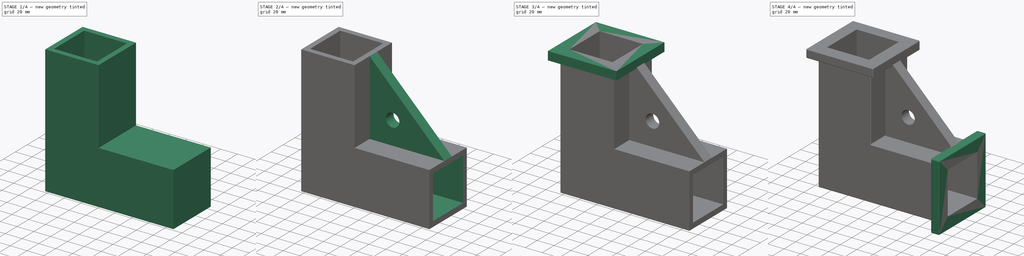
[diagram: build sequence overview — one tinted view per stage of 4, left to right]
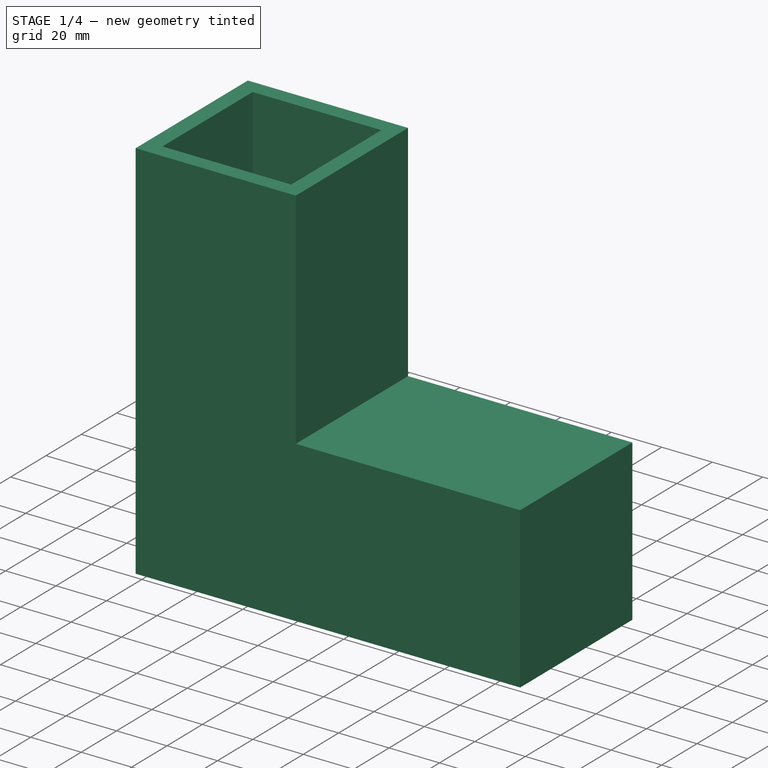
[diagram: stage 1 of 4 — iso view after this stage's code; geometry added in this stage tinted green]
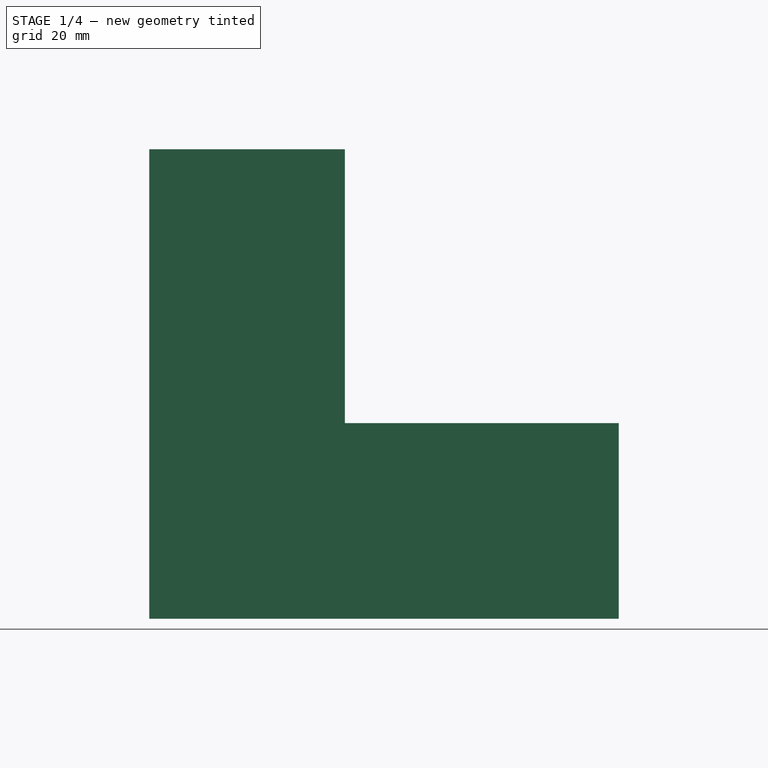
[diagram: stage 1 of 4 — front view after this stage's code; geometry added in this stage tinted green]
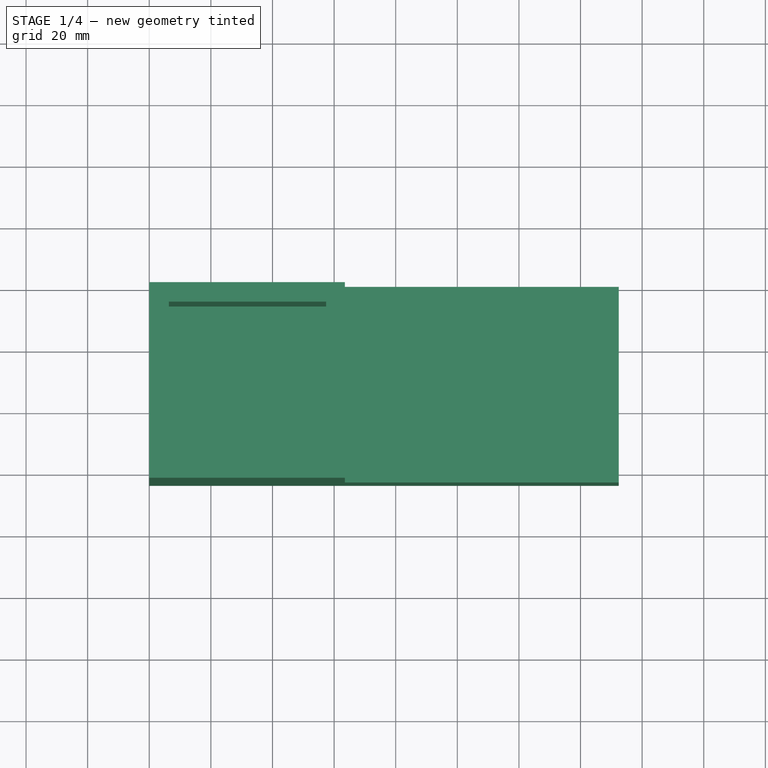
[diagram: stage 1 of 4 — top view after this stage's code; geometry added in this stage tinted green]
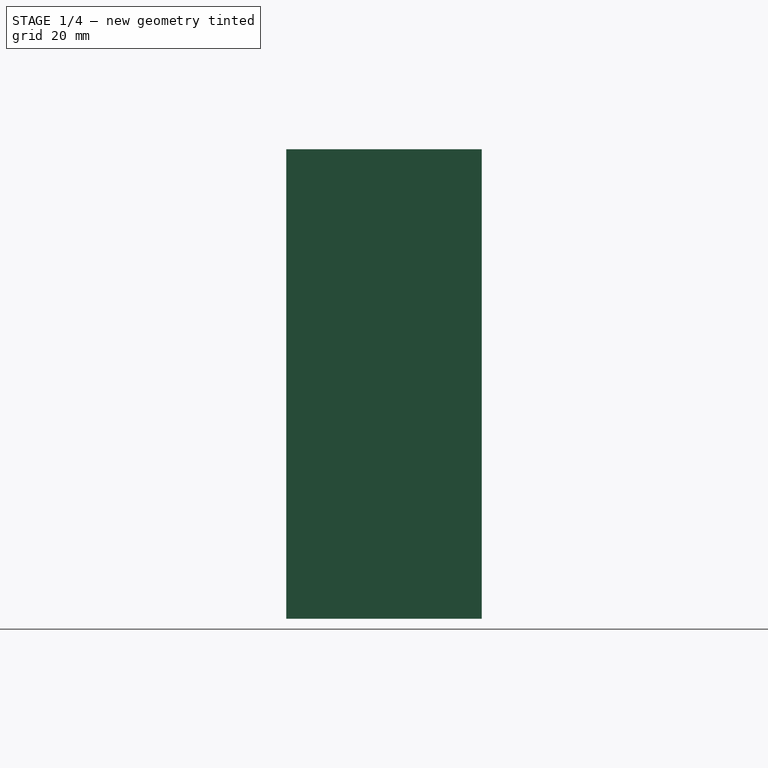
[diagram: stage 1 of 4 — right view after this stage's code; geometry added in this stage tinted green]
FCSTD DOCUMENT  (FreeCAD 1.0R39319 (Git))
Label: 2x2 corner
License: All rights reserved
LicenseURL: https://en.wikipedia.org/wiki/All_rights_reserved
objects: Sketcher::SketchObject×8, PartDesign::Pad×4, PartDesign::Pocket×4, PartDesign::Fillet×1, PartDesign::Body×1, App::Part×1
note: 44 computed .brp shape members not serialized (recipe doc carries the construction recipe); baked Part::Feature solids carry a one-line shape summary decoded from their .brp

FEATURE [Sketcher::SketchObject] Sketch
  ArcFitTolerance = 1e-06
  AttachmentSupport = -> [XZ_Plane001]
  FullyConstrained = true
  MakeInternals = false
  MapMode = 5
  Placement = pos=(0,0,0) rot=(1,0,0;1.5708rad)
  sketch-geometry (6):
    g0: LineSegment StartX=0 StartY=152.4 StartZ=0 EndX=0 EndY=0 EndZ=0
    g1: LineSegment StartX=0 StartY=0 StartZ=0 EndX=152.4 EndY=0 EndZ=0
    g2: LineSegment StartX=152.4 StartY=0 StartZ=0 EndX=152.4 EndY=63.5 EndZ=0
    g3: LineSegment StartX=152.4 StartY=63.5 StartZ=0 EndX=63.5 EndY=63.5 EndZ=0
    g4: LineSegment StartX=63.5 StartY=63.5 StartZ=0 EndX=63.5 EndY=152.4 EndZ=0
    g5: LineSegment StartX=63.5 StartY=152.4 StartZ=0 EndX=0 EndY=152.4 EndZ=0
  constraints (17):
    c: PointOnObject(g0,g-2)
    c: Coincident(g0,g-1)
    c: Coincident(g0,g1)
    c: PointOnObject(g1,g-1)
    c: Coincident(g1,g2)
    c: Vertical(g2)
    c: Coincident(g2,g3)
    c: Horizontal(g3)
    c: Coincident(g3,g4)
    c: Vertical(g4)
    c: Coincident(g4,g5)
    c: Coincident(g5,g0)
    c: Horizontal(g5)
    c: DistanceY(g-1,g0) = 152.4
    c: Distance(g1,g-1) = 152.4
    c: DistanceX(g-1,g4) = 63.5
    c: DistanceY(g-1,g2) = 63.5
FEATURE [PartDesign::Pad] Pad
  Direction = (0,-1,2e-16)
  Length = 63.5
  Length2 = 10
  Placement = pos=(0,0,0) rot=(1,0,0;1.5708rad)
  Profile = -> Sketch
  ReferenceAxis = -> Sketch [N_Axis]
  Refine = true
  Suppressed = false
  Type = 0
FEATURE [Sketcher::SketchObject] Sketch001
  ArcFitTolerance = 1e-06
  AttachmentSupport = -> [Pad]
  FullyConstrained = true
  MakeInternals = false
  MapMode = 5
  Placement = pos=(0,3.38e-14,152.4) rot=(0,0,1;3.14159rad)
  sketch-geometry (4):
    g0: LineSegment StartX=-57.4 StartY=57.4 StartZ=0 EndX=-57.4 EndY=6.35 EndZ=0
    g1: LineSegment StartX=-57.4 StartY=6.35 StartZ=0 EndX=-6.35 EndY=6.35 EndZ=0
    g2: LineSegment StartX=-6.35 StartY=6.35 StartZ=0 EndX=-6.35 EndY=57.4 EndZ=0
    g3: LineSegment StartX=-6.35 StartY=57.4 StartZ=0 EndX=-57.4 EndY=57.4 EndZ=0
  constraints (12):
    c: Coincident(g0,g1)
    c: Coincident(g1,g2)
    c: Coincident(g2,g3)
    c: Coincident(g3,g0)
    c: Vertical(g0)
    c: Vertical(g2)
    c: Horizontal(g1)
    c: Horizontal(g3)
    c: DistanceX(g1,g1) = 51.05
    c: DistanceY(g2,g2) = 51.05
    c: Distance(g1,g-2) = 6.35
    c: DistanceY(g-1,g1) = 6.35
FEATURE [PartDesign::Pocket] Pocket
  BaseFeature = -> Pad
  Direction = (0,0,-1)
  Length = 88.9
  Length2 = 5
  Placement = pos=(0,0,0) rot=(1,0,0;1.5708rad)
  Profile = -> Sketch001
  ReferenceAxis = -> Sketch001 [N_Axis]
  Refine = true
  Suppressed = false
  Type = 0
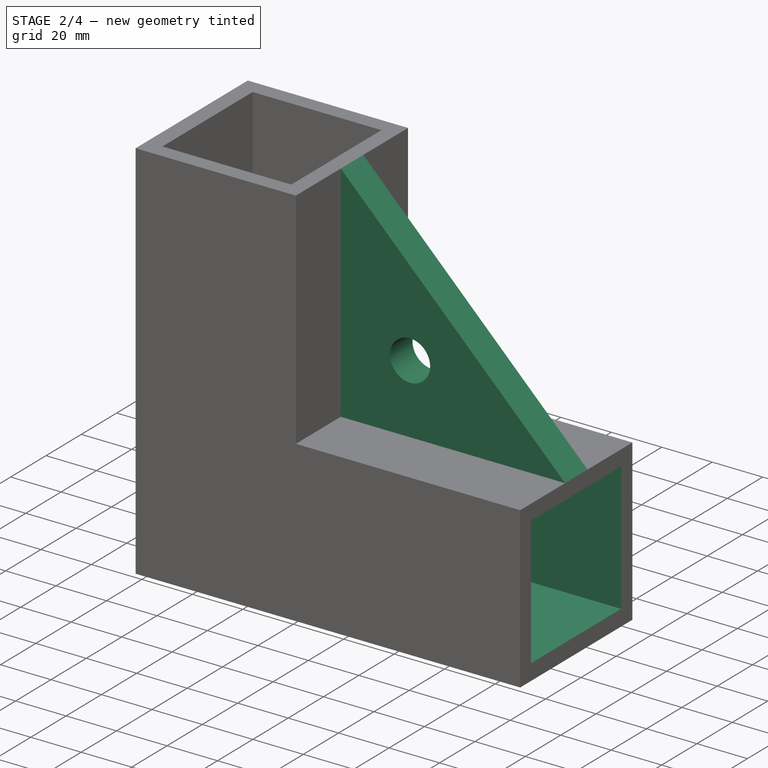
[diagram: stage 2 of 4 — iso view after this stage's code; geometry added in this stage tinted green]
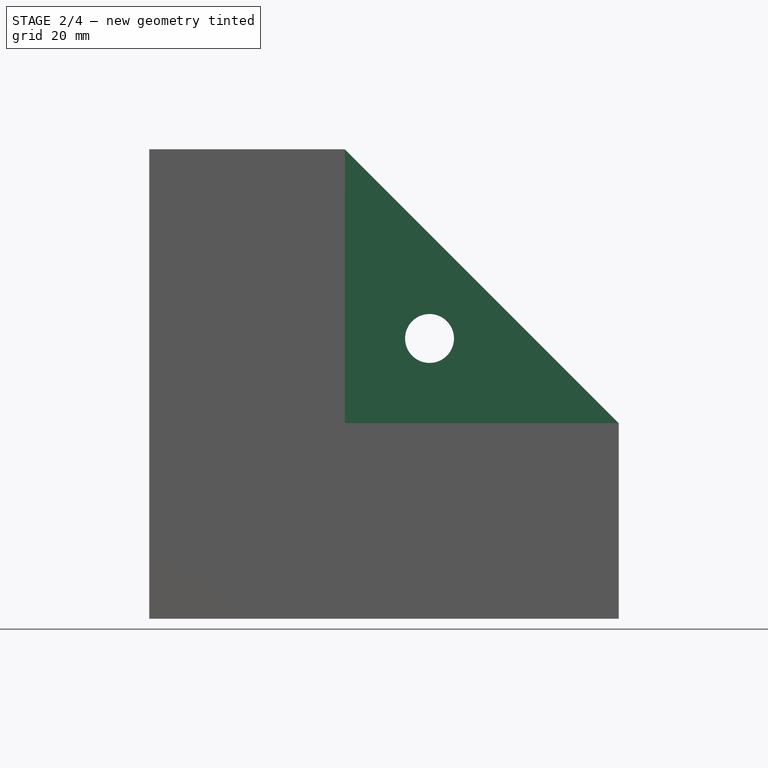
[diagram: stage 2 of 4 — front view after this stage's code; geometry added in this stage tinted green]
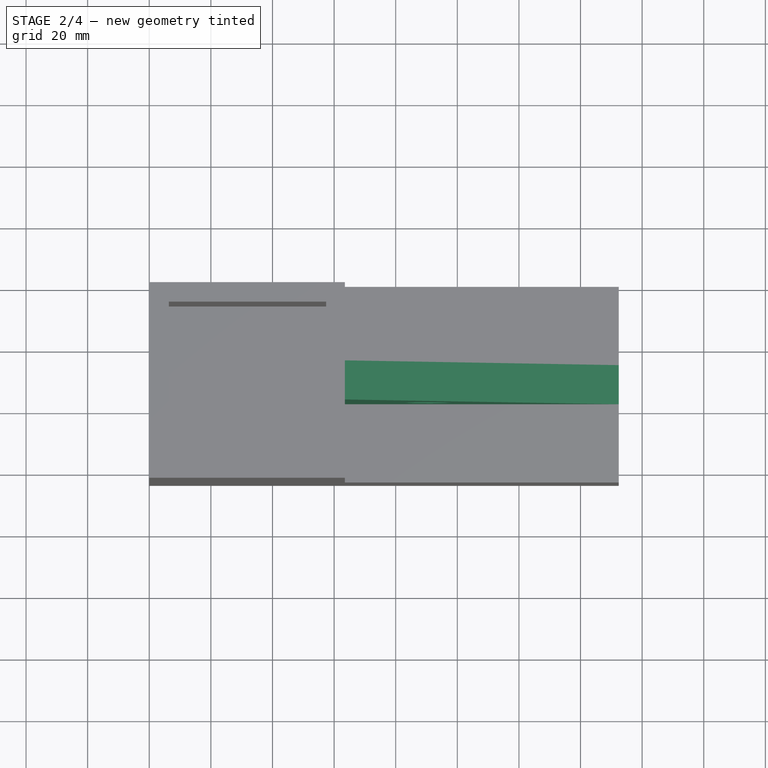
[diagram: stage 2 of 4 — top view after this stage's code; geometry added in this stage tinted green]
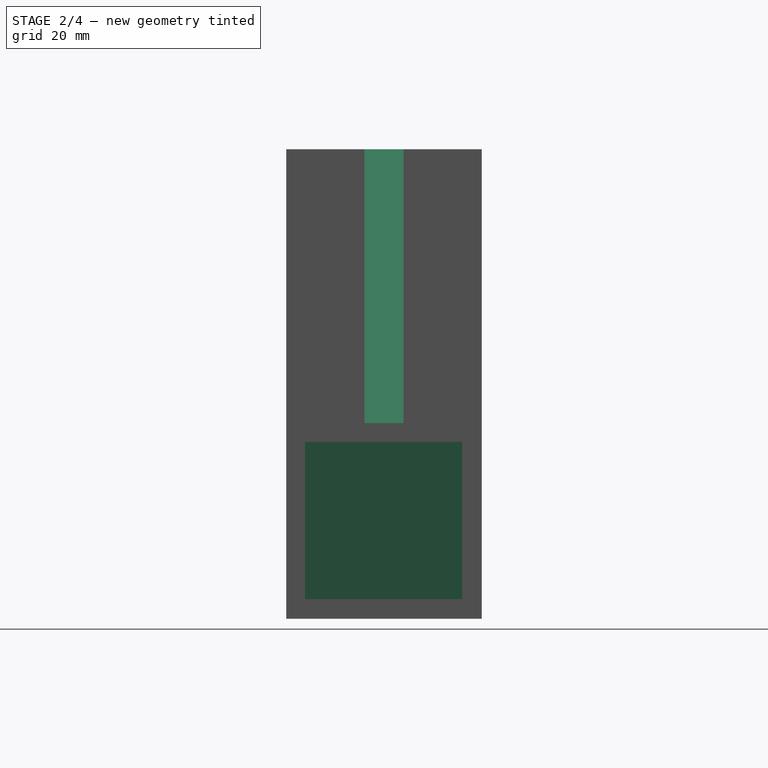
[diagram: stage 2 of 4 — right view after this stage's code; geometry added in this stage tinted green]
FEATURE [Sketcher::SketchObject] Sketch002
  ArcFitTolerance = 1e-06
  AttachmentSupport = -> [Pocket]
  FullyConstrained = true
  MakeInternals = false
  MapMode = 5
  Placement = pos=(152.4,0,0) rot=(0.707107,0,0.707107;3.14159rad)
  sketch-geometry (4):
    g0: LineSegment StartX=6.35 StartY=57.4 StartZ=0 EndX=6.35 EndY=6.35 EndZ=0
    g1: LineSegment StartX=6.35 StartY=6.35 StartZ=0 EndX=57.4 EndY=6.35 EndZ=0
    g2: LineSegment StartX=57.4 StartY=6.35 StartZ=0 EndX=57.4 EndY=57.4 EndZ=0
    g3: LineSegment StartX=57.4 StartY=57.4 StartZ=0 EndX=6.35 EndY=57.4 EndZ=0
  constraints (12):
    c: Coincident(g0,g1)
    c: Coincident(g1,g2)
    c: Coincident(g2,g3)
    c: Coincident(g3,g0)
    c: Vertical(g0)
    c: Vertical(g2)
    c: Horizontal(g1)
    c: Horizontal(g3)
    c: DistanceX(g1,g1) = 51.05
    c: DistanceY(g0,g0) = 51.05
    c: DistanceX(g-1,g0) = 6.35
    c: DistanceY(g-1,g0) = 6.35
FEATURE [PartDesign::Pocket] Pocket001
  BaseFeature = -> Pocket
  Direction = (-1,0,2e-16)
  Length = 88.9
  Length2 = 5
  Placement = pos=(0,0,0) rot=(1,0,0;1.5708rad)
  Profile = -> Sketch002
  ReferenceAxis = -> Sketch002 [N_Axis]
  Refine = true
  Suppressed = false
  Type = 0
FEATURE [Sketcher::SketchObject] Sketch003
  ArcFitTolerance = 1e-06
  AttachmentOffset = pos=(0,0,25.4) rot=(0,0,1;0rad)
  AttachmentSupport = -> [XZ_Plane001]
  ExternalGeometry = -> [Pocket001]
  FullyConstrained = true
  MakeInternals = false
  MapMode = 5
  Placement = pos=(0,-25.4,5.6e-15) rot=(1,0,0;1.5708rad)
  sketch-geometry (5):
    g0: LineSegment StartX=63.5 StartY=152.4 StartZ=0 EndX=63.5 EndY=63.5 EndZ=0
    g1: LineSegment StartX=63.5 StartY=63.5 StartZ=0 EndX=152.4 EndY=63.5 EndZ=0
    g2: LineSegment StartX=152.4 StartY=63.5 StartZ=0 EndX=63.5 EndY=152.4 EndZ=0
    g3: Circle CenterX=90.9794 CenterY=90.9794 CenterZ=0 NormalX=0 NormalY=0 NormalZ=1 AngleXU=0 Radius=7.9375
    g4: LineSegment [constr] StartX=63.5 StartY=63.5 StartZ=0 EndX=129.529 EndY=129.529 EndZ=0
  constraints (12):
    c: Coincident(g0,g-3)
    c: Coincident(g0,g-4)
    c: Coincident(g0,g1)
    c: Coincident(g1,g-5)
    c: Coincident(g1,g2)
    c: Coincident(g2,g0)
    c: Diameter(g3) = 15.875
    c: Coincident(g4,g0)
    c: Perpendicular(g4,g2)
    c: PointOnObject(g3,g4)
    c: Distance(g3,g2) = 24
    c: Block(g4)
FEATURE [PartDesign::Pad] Pad001
  BaseFeature = -> Pocket001
  Direction = (0,-1,2e-16)
  Length = 12.7
  Length2 = 10
  Placement = pos=(0,0,0) rot=(1,0,0;1.5708rad)
  Profile = -> Sketch003
  ReferenceAxis = -> Sketch003 [N_Axis]
  Refine = true
  Suppressed = false
  Type = 0
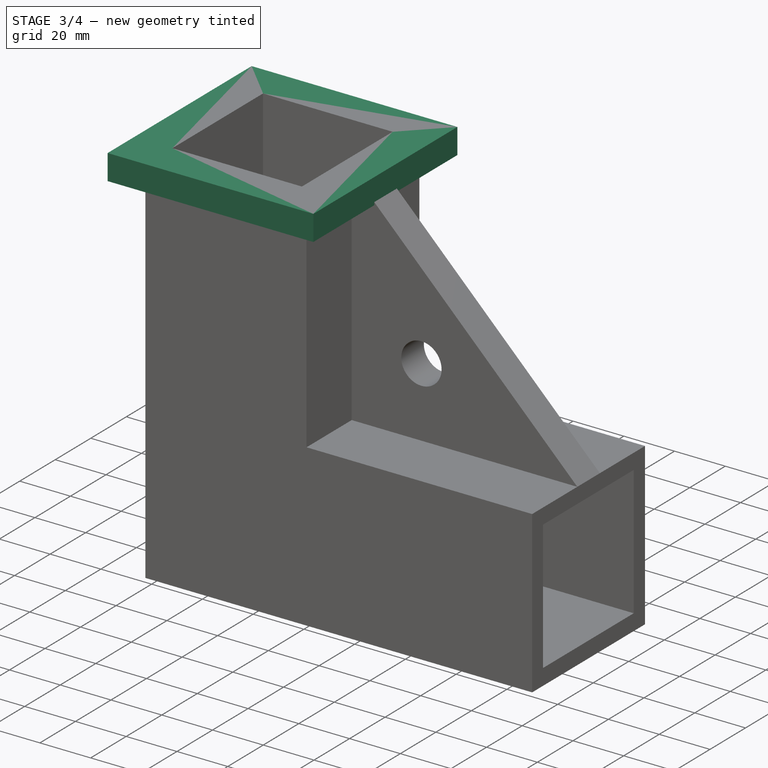
[diagram: stage 3 of 4 — iso view after this stage's code; geometry added in this stage tinted green]
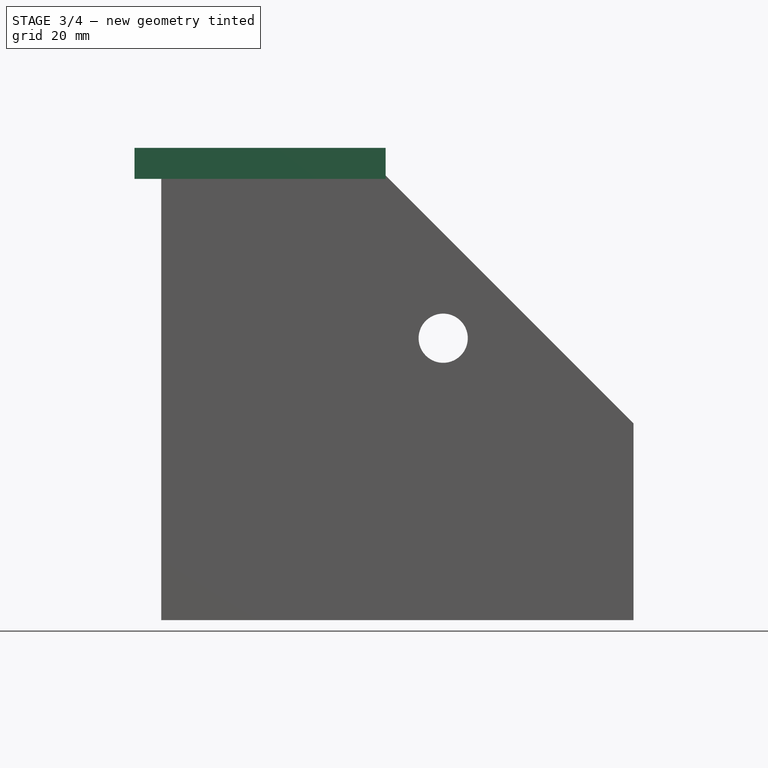
[diagram: stage 3 of 4 — front view after this stage's code; geometry added in this stage tinted green]
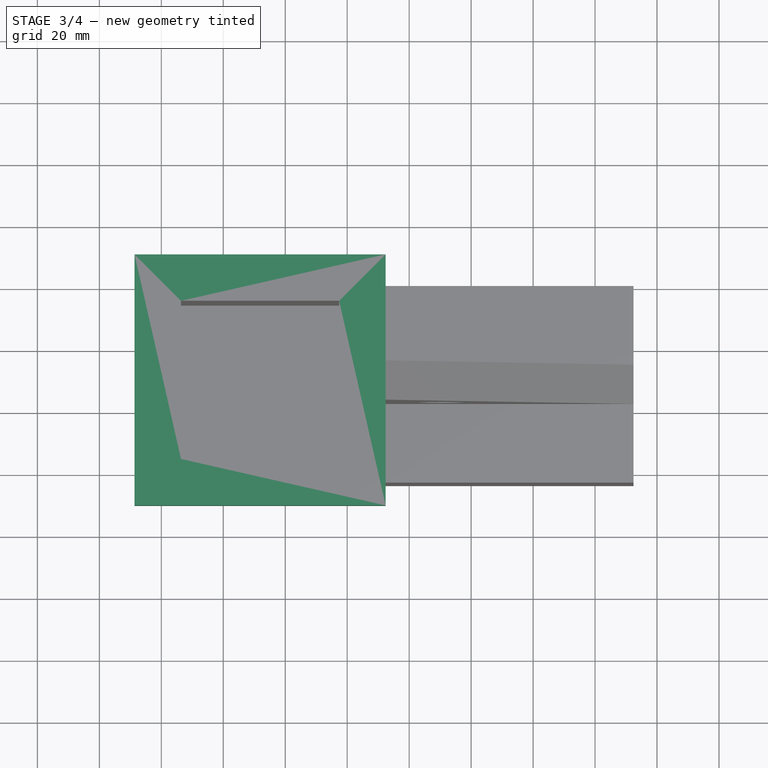
[diagram: stage 3 of 4 — top view after this stage's code; geometry added in this stage tinted green]
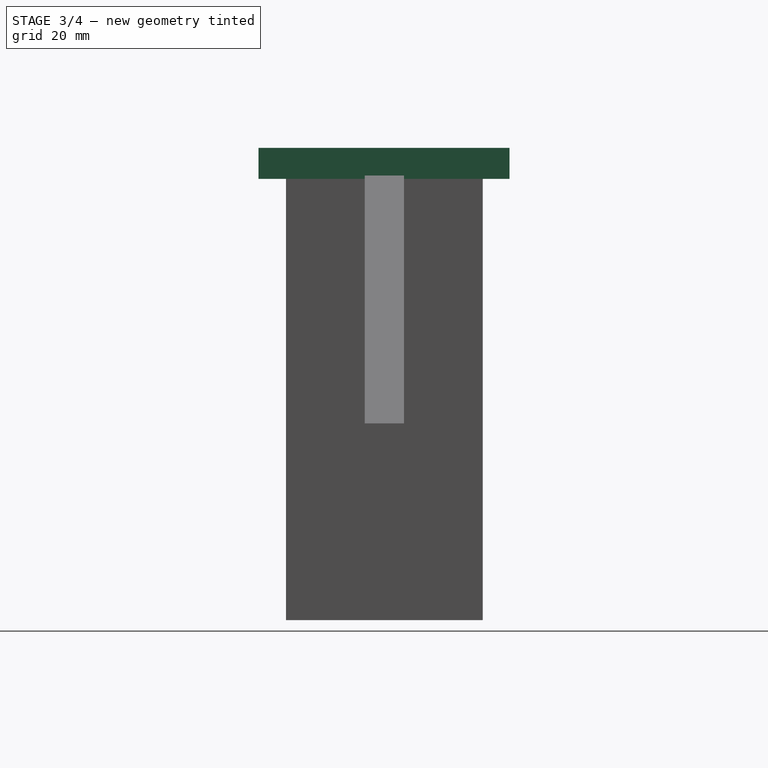
[diagram: stage 3 of 4 — right view after this stage's code; geometry added in this stage tinted green]
FEATURE [Sketcher::SketchObject] Sketch004
  ArcFitTolerance = 1e-06
  AttachmentSupport = -> [Pad001]
  FullyConstrained = true
  MakeInternals = false
  MapMode = 5
  Placement = pos=(0,0,0) rot=(0.707107,0,-0.707107;3.14159rad)
  sketch-geometry (3):
    g0: Circle CenterX=-130 CenterY=31.75 CenterZ=0 NormalX=0 NormalY=0 NormalZ=1 AngleXU=0 Radius=2
    g1: LineSegment [constr] StartX=-170.714 StartY=31.75 StartZ=0 EndX=11.2215 EndY=31.75 EndZ=0
    g2: Circle CenterX=-88.9 CenterY=31.75 CenterZ=0 NormalX=0 NormalY=0 NormalZ=1 AngleXU=0 Radius=2
  constraints (9):
    c: Diameter(g0) = 4
    c: Horizontal(g1)
    c: DistanceY(g-1,g1) = 31.75
    c: PointOnObject(g0,g1)
    c: DistanceX(g0,g-1) = 130
    c: Diameter(g2) = 4
    c: PointOnObject(g2,g1)
    c: DistanceX(g2,g-1) = 88.9
    c: Block(g1)
FEATURE [PartDesign::Pocket] Pocket002
  BaseFeature = -> Pad001
  Direction = (1,0,2e-16)
  Length = 5
  Length2 = 5
  Placement = pos=(0,0,0) rot=(1,0,0;1.5708rad)
  Profile = -> Sketch004
  ReferenceAxis = -> Sketch004 [N_Axis]
  Refine = true
  Suppressed = false
  Type = 2
FEATURE [Sketcher::SketchObject] Sketch005
  ArcFitTolerance = 1e-06
  AttachmentSupport = -> [Pocket002]
  FullyConstrained = true
  MakeInternals = false
  MapMode = 5
  Placement = pos=(0,0,0) rot=(1,0,0;3.14159rad)
  sketch-geometry (3):
    g0: LineSegment [constr] StartX=-45.6671 StartY=31.75 StartZ=0 EndX=167.059 EndY=31.75 EndZ=0
    g1: Circle CenterX=88.9 CenterY=31.75 CenterZ=0 NormalX=0 NormalY=0 NormalZ=1 AngleXU=0 Radius=2
    g2: Circle CenterX=130 CenterY=31.75 CenterZ=0 NormalX=0 NormalY=0 NormalZ=1 AngleXU=0 Radius=2
  constraints (9):
    c: Horizontal(g0)
    c: DistanceY(g-1,g0) = 31.75
    c: Diameter(g1) = 4
    c: Diameter(g2) = 4
    c: PointOnObject(g1,g0)
    c: PointOnObject(g2,g0)
    c: Distance(g2,g-2) = 130
    c: DistanceX(g-1,g1) = 88.9
    c: Block(g0)
FEATURE [PartDesign::Pocket] Pocket003
  BaseFeature = -> Pocket002
  Direction = (0,0,1)
  Length = 5
  Length2 = 5
  Placement = pos=(0,0,0) rot=(1,0,0;1.5708rad)
  Profile = -> Sketch005
  ReferenceAxis = -> Sketch005 [N_Axis]
  Refine = true
  Suppressed = false
  Type = 2
FEATURE [Sketcher::SketchObject] Sketch006
  ArcFitTolerance = 1e-06
  AttachmentSupport = -> [Pocket003]
  ExternalGeometry = -> [Pocket003]
  FullyConstrained = true
  MakeInternals = false
  MapMode = 5
  Placement = pos=(0,3.38e-14,152.4) rot=(0,0,1;3.14159rad)
  sketch-geometry (8):
    g0: LineSegment StartX=-57.4 StartY=57.4 StartZ=0 EndX=-57.4 EndY=6.35 EndZ=0
    g1: LineSegment StartX=-57.4 StartY=6.35 StartZ=0 EndX=-6.35 EndY=6.35 EndZ=0
    g2: LineSegment StartX=-6.35 StartY=6.35 StartZ=0 EndX=-6.35 EndY=57.4 EndZ=0
    g3: LineSegment StartX=-6.35 StartY=57.4 StartZ=0 EndX=-57.4 EndY=57.4 EndZ=0
    g4: LineSegment StartX=-72.4 StartY=72.4 StartZ=0 EndX=-72.4 EndY=-8.65 EndZ=0
    g5: LineSegment StartX=-72.4 StartY=-8.65 StartZ=0 EndX=8.65 EndY=-8.65 EndZ=0
    g6: LineSegment StartX=8.65 StartY=-8.65 StartZ=0 EndX=8.65 EndY=72.4 EndZ=0
    g7: LineSegment StartX=8.65 StartY=72.4 StartZ=0 EndX=-72.4 EndY=72.4 EndZ=0
  constraints (22):
    c: Coincident(g0,g1)
    c: Coincident(g1,g2)
    c: Coincident(g2,g3)
    c: Coincident(g3,g0)
    c: Vertical(g0)
    c: Vertical(g2)
    c: Horizontal(g1)
    c: Horizontal(g3)
    c: Coincident(g0,g-3)
    c: Coincident(g1,g-5)
    c: Coincident(g4,g5)
    c: Coincident(g5,g6)
    c: Coincident(g6,g7)
    c: Coincident(g7,g4)
    c: Vertical(g4)
    c: Vertical(g6)
    c: Horizontal(g5)
    c: Horizontal(g7)
    c: DistanceX(g2,g6) = 15
    c: DistanceY(g2,g6) = 15
    c: DistanceY(g4,g0) = 15
    c: DistanceX(g4,g0) = 15
FEATURE [PartDesign::Pad] Pad002
  BaseFeature = -> Pocket003
  Direction = (0,0,1)
  Length = 10
  Length2 = 10
  Placement = pos=(0,0,0) rot=(1,0,0;1.5708rad)
  Profile = -> Sketch006
  ReferenceAxis = -> Sketch006 [N_Axis]
  Refine = true
  Reversed = true
  Suppressed = false
  Type = 0
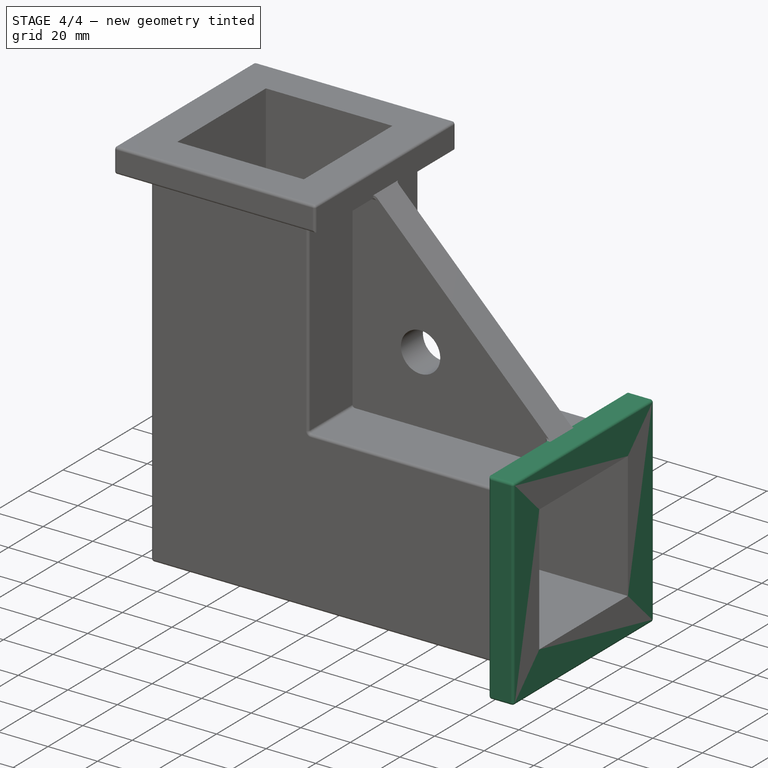
[diagram: stage 4 of 4 — iso view after this stage's code; geometry added in this stage tinted green]
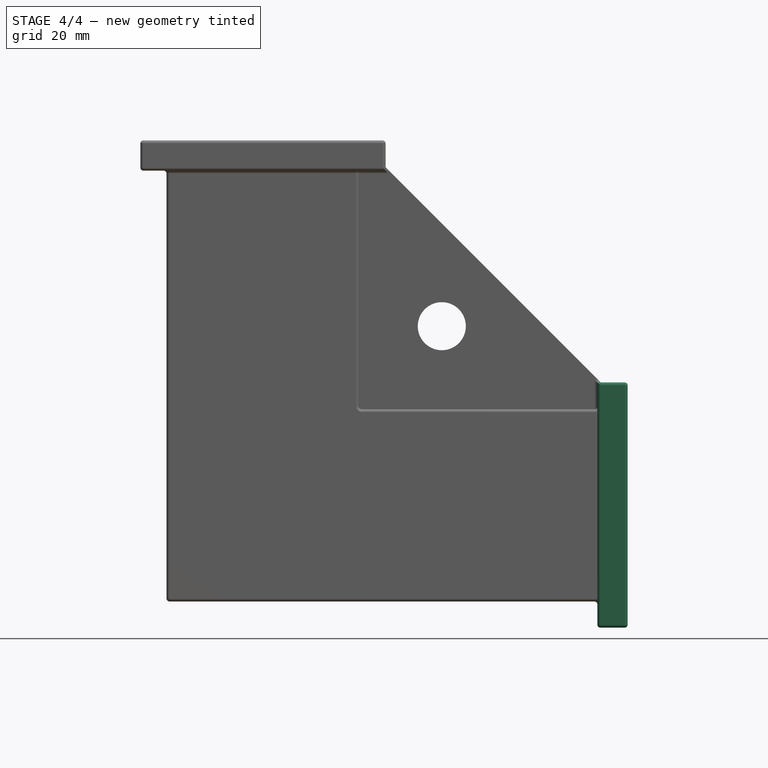
[diagram: stage 4 of 4 — front view after this stage's code; geometry added in this stage tinted green]
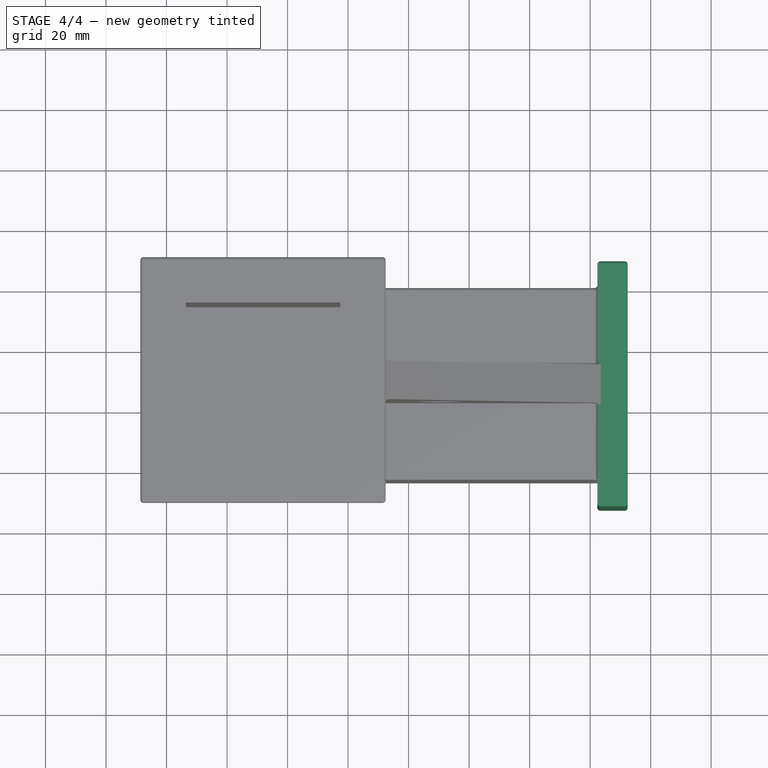
[diagram: stage 4 of 4 — top view after this stage's code; geometry added in this stage tinted green]
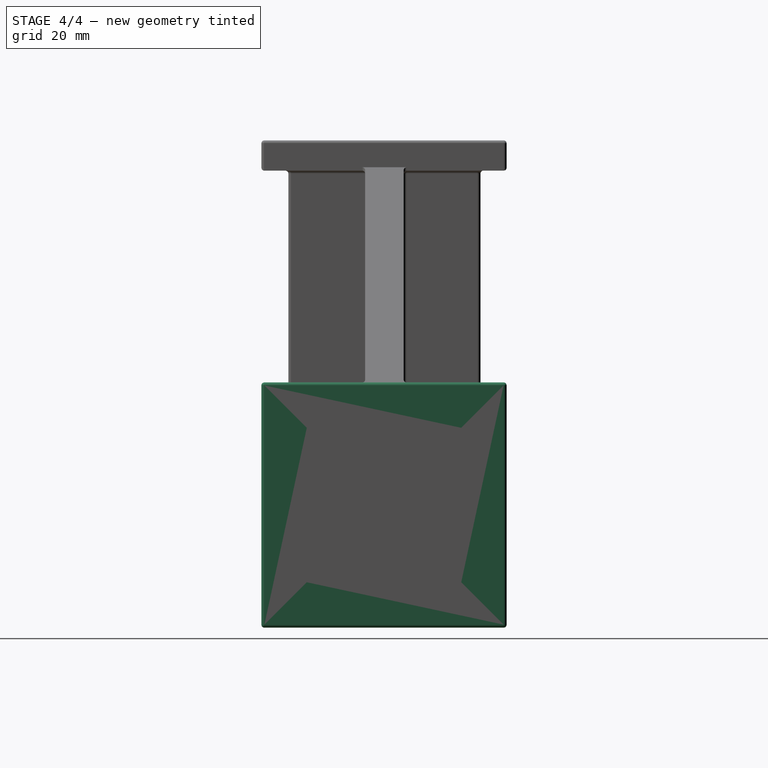
[diagram: stage 4 of 4 — right view after this stage's code; geometry added in this stage tinted green]
FEATURE [Sketcher::SketchObject] Sketch007
  ArcFitTolerance = 1e-06
  AttachmentSupport = -> [Pad002]
  ExternalGeometry = -> [Pad002]
  FullyConstrained = true
  MakeInternals = false
  MapMode = 5
  Placement = pos=(152.4,0,0) rot=(0.707107,0,0.707107;3.14159rad)
  sketch-geometry (8):
    g0: LineSegment StartX=6.35 StartY=57.4 StartZ=0 EndX=6.35 EndY=6.35 EndZ=0
    g1: LineSegment StartX=6.35 StartY=6.35 StartZ=0 EndX=57.4 EndY=6.35 EndZ=0
    g2: LineSegment StartX=57.4 StartY=6.35 StartZ=0 EndX=57.4 EndY=57.4 EndZ=0
    g3: LineSegment StartX=57.4 StartY=57.4 StartZ=0 EndX=6.35 EndY=57.4 EndZ=0
    g4: LineSegment StartX=-8.65 StartY=72.4 StartZ=0 EndX=-8.65 EndY=-8.65 EndZ=0
    g5: LineSegment StartX=-8.65 StartY=-8.65 StartZ=0 EndX=72.4 EndY=-8.65 EndZ=0
    g6: LineSegment StartX=72.4 StartY=-8.65 StartZ=0 EndX=72.4 EndY=72.4 EndZ=0
    g7: LineSegment StartX=72.4 StartY=72.4 StartZ=0 EndX=-8.65 EndY=72.4 EndZ=0
  constraints (22):
    c: Coincident(g0,g1)
    c: Coincident(g1,g2)
    c: Coincident(g2,g3)
    c: Coincident(g3,g0)
    c: Vertical(g0)
    c: Vertical(g2)
    c: Horizontal(g1)
    c: Horizontal(g3)
    c: Coincident(g0,g-3)
    c: Coincident(g1,g-5)
    c: Coincident(g4,g5)
    c: Coincident(g5,g6)
    c: Coincident(g6,g7)
    c: Coincident(g7,g4)
    c: Vertical(g4)
    c: Vertical(g6)
    c: Horizontal(g5)
    c: Horizontal(g7)
    c: DistanceY(g0,g4) = 15
    c: DistanceX(g4,g0) = 15
    c: DistanceY(g5,g1) = 15
    c: DistanceX(g1,g5) = 15
FEATURE [PartDesign::Pad] Pad003
  BaseFeature = -> Pad002
  Direction = (1,0,-2e-16)
  Length = 10
  Length2 = 10
  Placement = pos=(0,0,0) rot=(1,0,0;1.5708rad)
  Profile = -> Sketch007
  ReferenceAxis = -> Sketch007 [N_Axis]
  Refine = true
  Reversed = true
  Suppressed = false
  Type = 0
FEATURE [PartDesign::Fillet] Fillet
  Base = -> Pad003 [Edge65,Edge52,Edge25,Edge21,Edge69,Edge66,Edge29,Edge37,Edge26,Edge20,Edge28,Edge27,Edge56,Edge51,Edge4,Edge2,Edge76,Edge84,Edge82,Edge70,Edge55,Edge22,Edge75,Edge16,Edge40,Edge8,Edge19,Edge17,Edge23,Edge24,Edge18,Edge58,Edge61,Edge57,Edge53,Edge54,Edge72,Edge73,Edge9,Edge10,+12 more]
  BaseFeature = -> Pad003
  Placement = pos=(0,0,0) rot=(1,0,0;1.5708rad)
  Radius = 1
  Refine = true
  SupportTransform = false
  Suppressed = false
  UseAllEdges = false
FEATURE [PartDesign::Body] Body
  AllowCompound = false
  Group = -> [Sketch,Pad,Sketch001,Pocket,Sketch002,Pocket001,Sketch003,Pad001,Sketch004,Pocket002,Sketch005,Pocket003,Sketch006,Pad002,Sketch007,Pad003,Fillet]
  Origin = -> Origin001
  Tip = -> Fillet
FEATURE [App::Part] Part
  Group = -> [Body]
  Origin = -> Origin
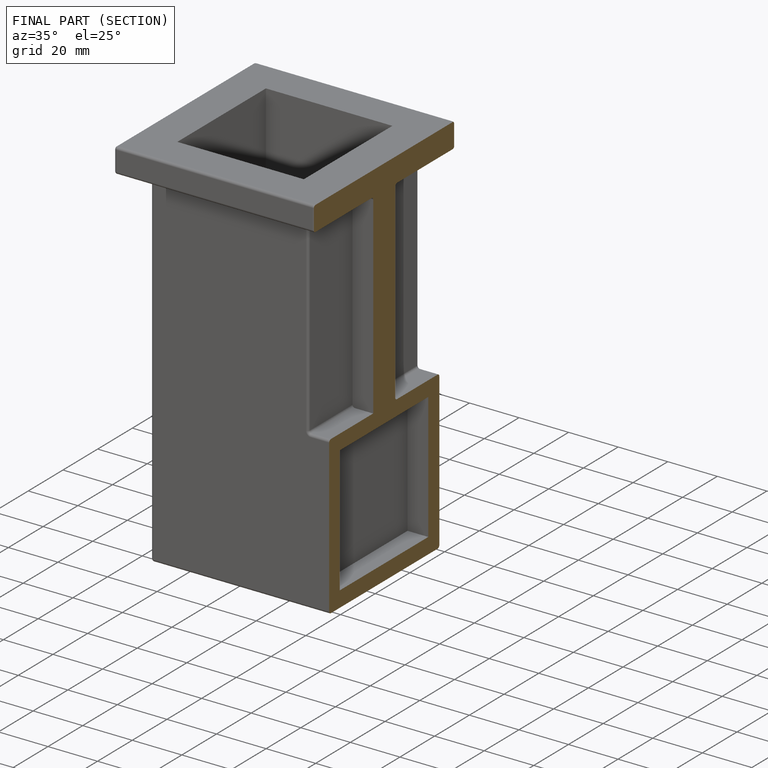
[diagram: finished part — half-section view (interior)]
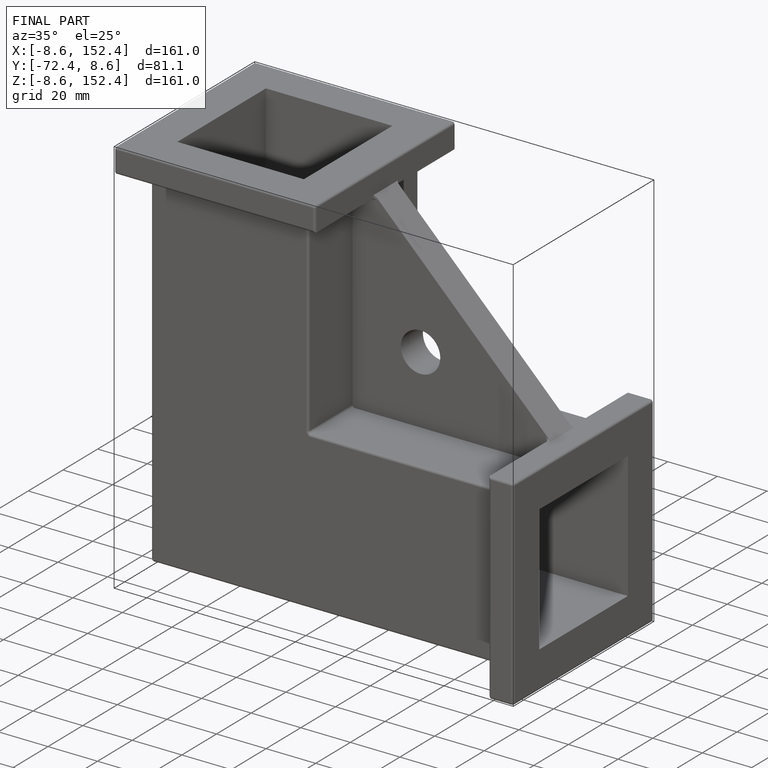
[diagram: finished part — iso view with bounding-box wireframe]
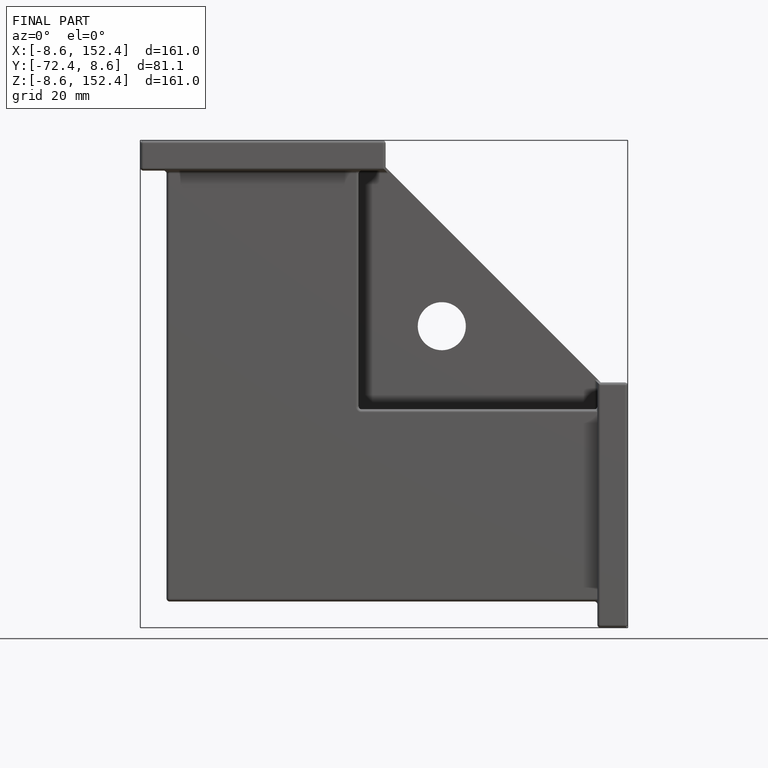
[diagram: finished part — front view with bounding-box wireframe]
